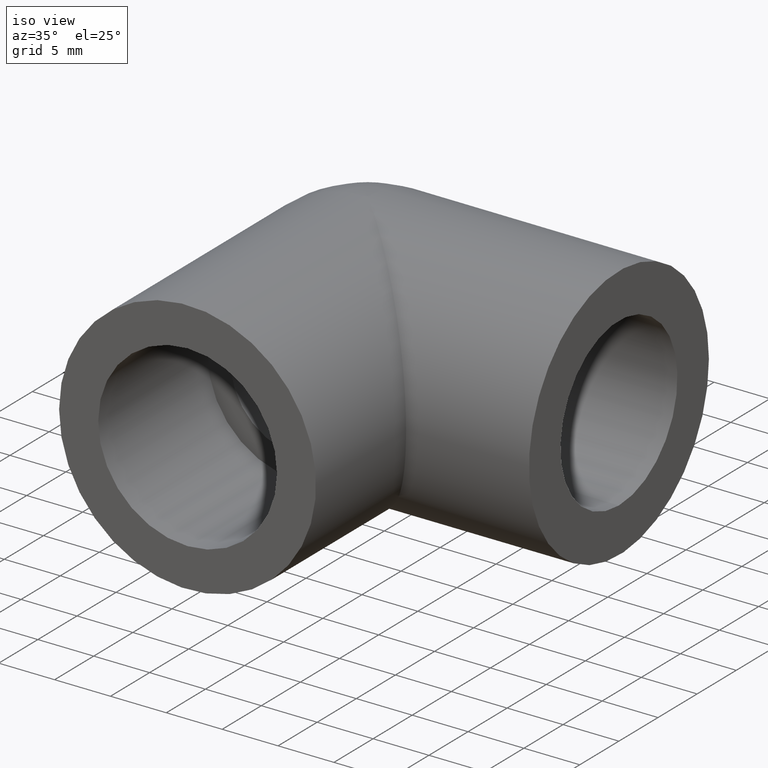
[diagram: clean part render]
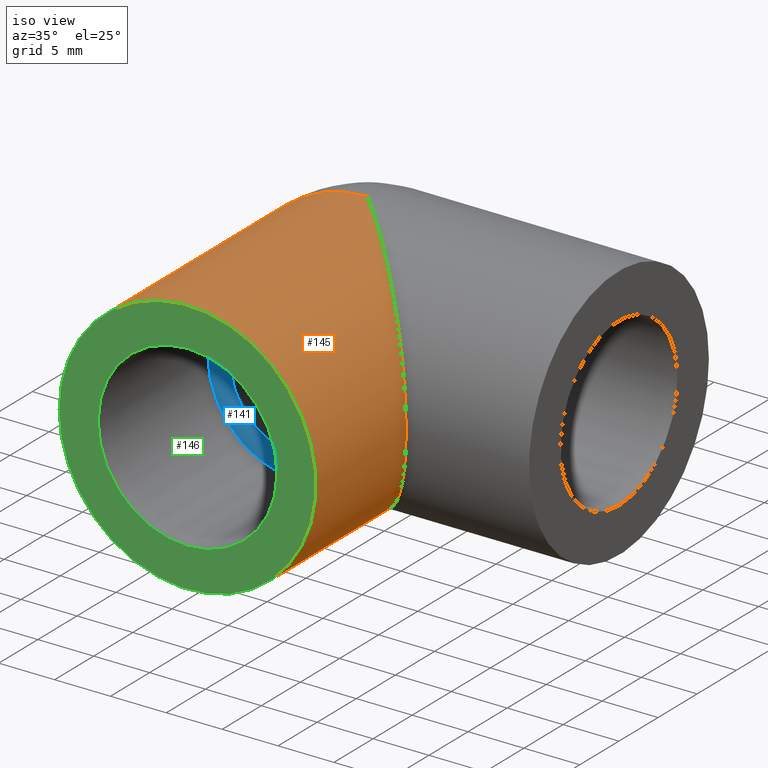
[diagram: same view with three faces highlighted in distinct colors, each labeled with its STEP entity id]
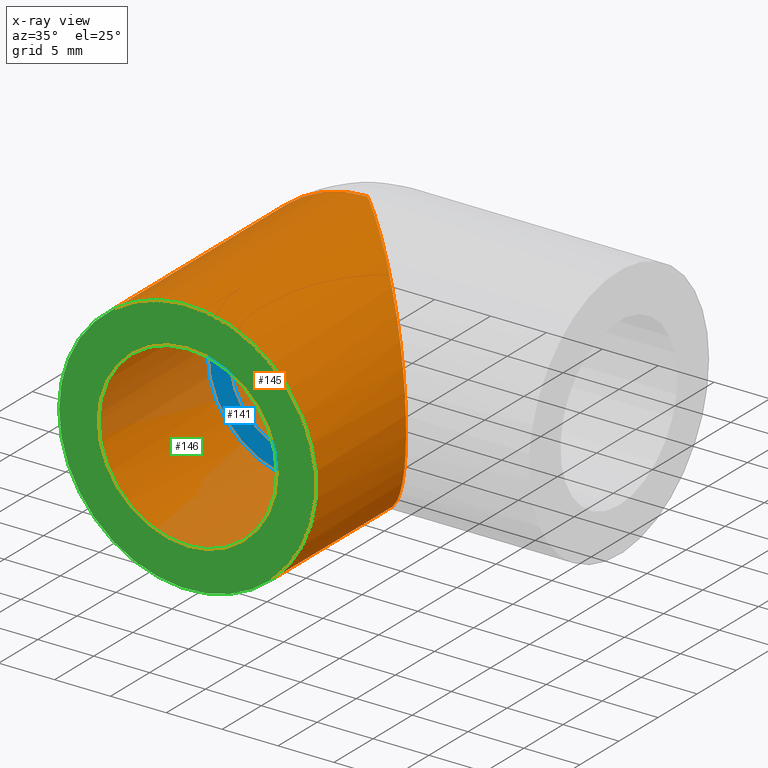
[diagram: x-ray of the same camera — body ghosted, the three highlighted faces saturated]
A machine part, iso view with three faces highlighted in distinct colors.
The next image is the same camera in x-ray (body ghosted, the three faces saturated) — at least one of them is partly hidden behind the body in this view.
Their STEP definitions:

[orange] entity #145 — the highlighted cylindrical surface (bore or boss wall) has radius 11.5 mm, axis along (-0, 1, 0).
#15=ELLIPSE('',#171,16.2634559672906,11.5);
#29=FACE_BOUND('',#61,.T.);
#41=FACE_OUTER_BOUND('',#60,.T.);
#60=EDGE_LOOP('',(#121));
#61=EDGE_LOOP('',(#122,#123));
#77=CIRCLE('',#168,11.5);
#78=CIRCLE('',#170,11.5);
#88=VERTEX_POINT('',#253);
#89=VERTEX_POINT('',#254);
#90=VERTEX_POINT('',#258);
#101=EDGE_CURVE('',#88,#89,#77,.T.);
#102=EDGE_CURVE('',#90,#90,#78,.T.);
#103=EDGE_CURVE('',#89,#88,#15,.T.);
#121=ORIENTED_EDGE('',*,*,#102,.T.);
#122=ORIENTED_EDGE('',*,*,#103,.F.);
#123=ORIENTED_EDGE('',*,*,#101,.F.);
#135=CYLINDRICAL_SURFACE('',#169,11.5);
#145=ADVANCED_FACE('',(#41,#29),#135,.T.);
#168=AXIS2_PLACEMENT_3D('',#256,#212,#213);
#169=AXIS2_PLACEMENT_3D('',#257,#214,#215);
#170=AXIS2_PLACEMENT_3D('',#259,#216,#217);
#171=AXIS2_PLACEMENT_3D('',#260,#218,#219);
#212=DIRECTION('center_axis',(-1.22464679914735E-16,1.,0.));
#213=DIRECTION('ref_axis',(1.,1.22464679914735E-16,0.));
#214=DIRECTION('center_axis',(-1.22464679914735E-16,1.,0.));
#215=DIRECTION('ref_axis',(-1.,0.,0.));
#216=DIRECTION('center_axis',(-1.22464679914735E-16,1.,0.));
#217=DIRECTION('ref_axis',(1.,1.22464679914735E-16,0.));
#218=DIRECTION('center_axis',(0.707106781186547,0.707106781186548,0.));
#219=DIRECTION('ref_axis',(-0.707106781186548,0.707106781186547,0.));
#253=CARTESIAN_POINT('',(-4.22503145705837E-15,-3.44944750012227E-31,-11.5));
#254=CARTESIAN_POINT('',(-4.22503145705837E-15,-3.44944750012227E-31,11.5));
#256=CARTESIAN_POINT('Origin',(0.,0.,0.));
#257=CARTESIAN_POINT('Origin',(1.40834381901946E-15,-11.5,0.));
#258=CARTESIAN_POINT('',(-11.5,-23.,0.));
#259=CARTESIAN_POINT('Origin',(2.81668763803891E-15,-23.,0.));
#260=CARTESIAN_POINT('Origin',(0.,0.,0.));

[blue] entity #141 — the highlighted planar face has unit normal (0, -1, 0).
#17=PLANE('',#161);
#26=FACE_BOUND('',#54,.T.);
#37=FACE_OUTER_BOUND('',#53,.T.);
#53=EDGE_LOOP('',(#113));
#54=EDGE_LOOP('',(#114));
#68=CIRCLE('',#152,5.98);
#72=CIRCLE('',#159,8.);
#80=VERTEX_POINT('',#230);
#84=VERTEX_POINT('',#241);
#92=EDGE_CURVE('',#80,#80,#68,.T.);
#96=EDGE_CURVE('',#84,#84,#72,.T.);
#113=ORIENTED_EDGE('',*,*,#96,.F.);
#114=ORIENTED_EDGE('',*,*,#92,.T.);
#141=ADVANCED_FACE('',(#37,#26),#17,.T.);
#152=AXIS2_PLACEMENT_3D('',#231,#180,#181);
#159=AXIS2_PLACEMENT_3D('',#242,#194,#195);
#161=AXIS2_PLACEMENT_3D('',#245,#198,#199);
#180=DIRECTION('center_axis',(-1.22464679914735E-16,1.,0.));
#181=DIRECTION('ref_axis',(0.,0.,1.));
#194=DIRECTION('center_axis',(-1.22464679914735E-16,1.,0.));
#195=DIRECTION('ref_axis',(-1.,-1.22464679914735E-16,0.));
#198=DIRECTION('center_axis',(1.22464679914735E-16,-1.,0.));
#199=DIRECTION('ref_axis',(0.,0.,-1.));
#230=CARTESIAN_POINT('',(1.5314539548128E-15,-9.,-5.98));
#231=CARTESIAN_POINT('Origin',(2.26379274070292E-15,-9.00000000000001,0.));
#241=CARTESIAN_POINT('',(8.,-9.00000000000001,9.79717439317883E-16));
#242=CARTESIAN_POINT('Origin',(5.962415887886E-16,-9.00000000000001,0.));
#245=CARTESIAN_POINT('Origin',(6.06722085866705E-16,-9.00000000000001,0.));

[green] entity #146 — the highlighted planar face has unit normal (0, -1, 0).
#19=PLANE('',#172);
#30=FACE_BOUND('',#63,.T.);
#42=FACE_OUTER_BOUND('',#62,.T.);
#62=EDGE_LOOP('',(#124));
#63=EDGE_LOOP('',(#125));
#73=CIRCLE('',#160,8.);
#78=CIRCLE('',#170,11.5);
#85=VERTEX_POINT('',#243);
#90=VERTEX_POINT('',#258);
#97=EDGE_CURVE('',#85,#85,#73,.T.);
#102=EDGE_CURVE('',#90,#90,#78,.T.);
#124=ORIENTED_EDGE('',*,*,#102,.F.);
#125=ORIENTED_EDGE('',*,*,#97,.T.);
#146=ADVANCED_FACE('',(#42,#30),#19,.T.);
#160=AXIS2_PLACEMENT_3D('',#244,#196,#197);
#170=AXIS2_PLACEMENT_3D('',#259,#216,#217);
#172=AXIS2_PLACEMENT_3D('',#261,#220,#221);
#196=DIRECTION('center_axis',(-1.22464679914735E-16,1.,0.));
#197=DIRECTION('ref_axis',(-1.,-1.58603289232165E-16,0.));
#216=DIRECTION('center_axis',(-1.22464679914735E-16,1.,0.));
#217=DIRECTION('ref_axis',(1.,1.22464679914735E-16,0.));
#220=DIRECTION('center_axis',(1.22464679914735E-16,-1.,0.));
#221=DIRECTION('ref_axis',(0.,0.,-1.));
#243=CARTESIAN_POINT('',(8.,-23.,9.79717439317883E-16));
#244=CARTESIAN_POINT('Origin',(2.81668763803891E-15,-23.,0.));
#258=CARTESIAN_POINT('',(-11.5,-23.,0.));
#259=CARTESIAN_POINT('Origin',(2.81668763803891E-15,-23.,0.));
#261=CARTESIAN_POINT('Origin',(-11.5,-23.,0.));